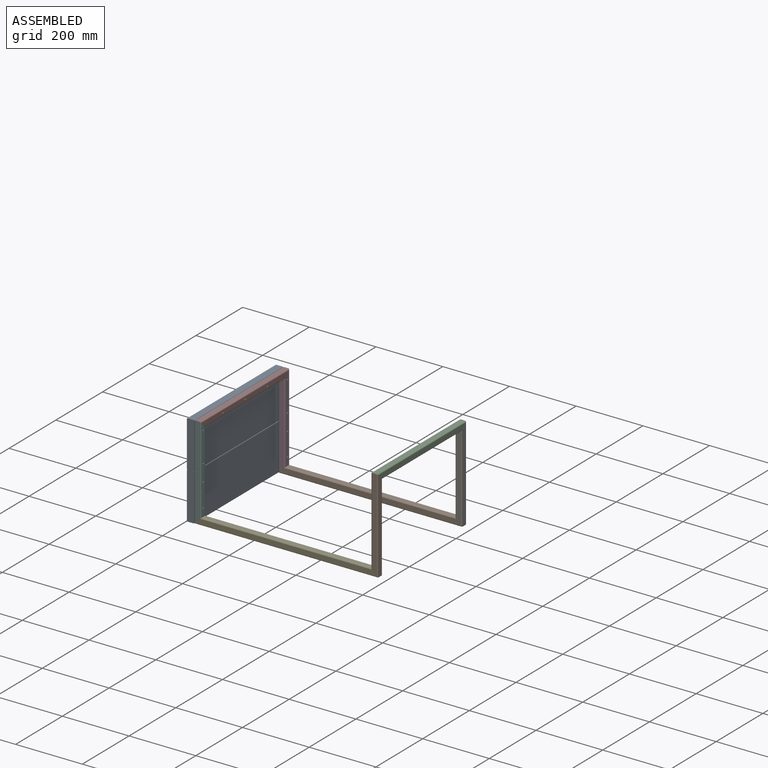
[diagram: assembled view]
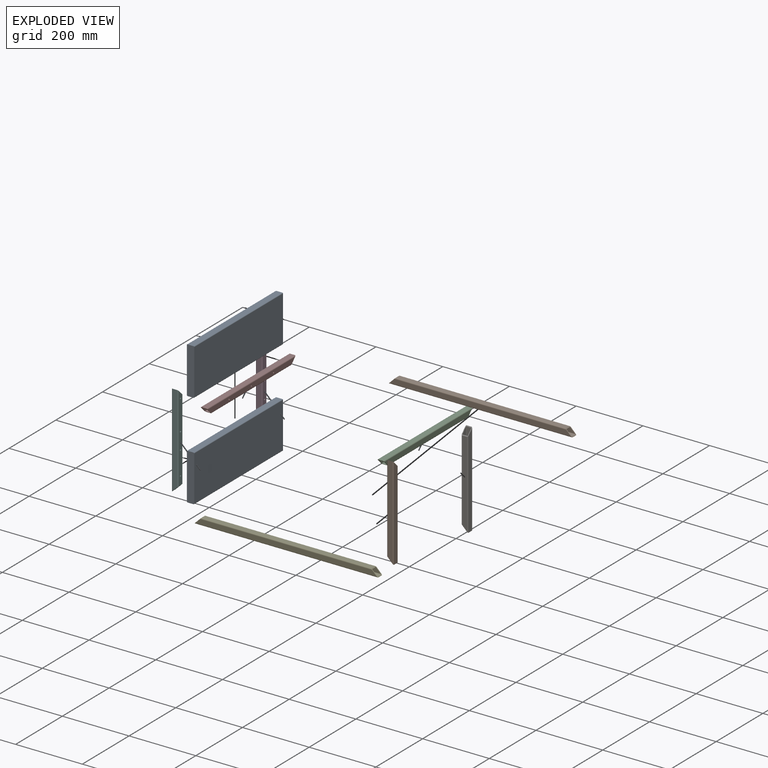
[diagram: exploded view]
GUIDED TOUR — MATED ASSEMBLY (Onshape document 8df5df5993ff2c04b47fe35c, AutoMate assembly 8df5df5993ff2c04b47fe35c_9302a440cc6d248bd5f4f8c5_75856d870aac80b1c467b3a7_default)

This assembly has 10 components, labeled P0..P9 below (a component is one placed occurrence of a part; the same part can appear more than once), held together by 9 mates. A mate is a constraint between two components; its type names the relative motion it leaves free:
  FASTENED — locks the two components together rigidly (no relative motion).
Axis/direction vectors are unit vectors and 'through' points are millimeter coordinates, both in the assembly's world frame.

MATES
  1. FASTENED "Fastened 2": P6 <-> P2, direction (0.000, -0.707, 0.707) through (-16.32, 168.05, -8.79) mm
  2. FASTENED "Fastened 3": P1 <-> P4, direction (-0.707, 0.000, -0.707) through (-26.32, -201.95, -268.79) mm
  3. FASTENED "Fastened 4": P9 <-> P6, direction (0.707, 0.000, 0.707) through (-26.32, 158.05, -268.79) mm
  4. FASTENED "Fastened 1": P1 <-> P2, direction (0.000, 0.707, 0.707) through (-16.32, -191.95, -28.79) mm
  5. FASTENED "Fastened 8": P0 <-> P4, direction (0.000, 0.000, -1.000) through (-567.32, -211.95, -288.79) mm
  6. FASTENED "Fastened 7": P7 <-> P5, direction (0.000, -0.707, -0.707) through (-546.32, -191.95, -28.79) mm
  7. FASTENED "Fastened 6": P5 <-> P4, direction (0.707, 0.000, -0.707) through (-538.32, -201.95, -270.79) mm
  8. FASTENED "Fastened 5": P9 <-> P3, direction (-0.707, 0.000, 0.707) through (-538.32, 158.05, -270.79) mm
  9. FASTENED "Fastened 9": P8 <-> P0, direction (0.000, 0.000, -1.000) through (-567.32, -211.95, -148.79) mm

ASSEMBLY ORDER
  1. P6 — the base component [order verified]
  2. P2 [order verified]
  3. P9 [order verified]
  4. P7 [order verified]
  5. P4 [order verified]
  6. P0 [order verified]
  7. P8 [order verified]
  8. P3 [order verified]
  9. P5 [order verified]
  10. P1 [order verified]
Order-tag legend:
  [order verified] — this step's position reverses a verified removal order: the component was checked to insert without passing through the ones already placed.

Of the 10 components, 8 carry the full construction recipe — the FeatureScript program that regenerates the part's solid from scratch; the rest are supplied as boundary geometry only.
Each toured component is shown spotlighted twice — in the assembled view, then in the exploded view, where a leader line traces a displaced component back to its assembled socket (saturated green if recipe-attached, orange if geometry-only; every other component desaturated gray) — followed by its recipe or geometry summary and the mates that hold it.
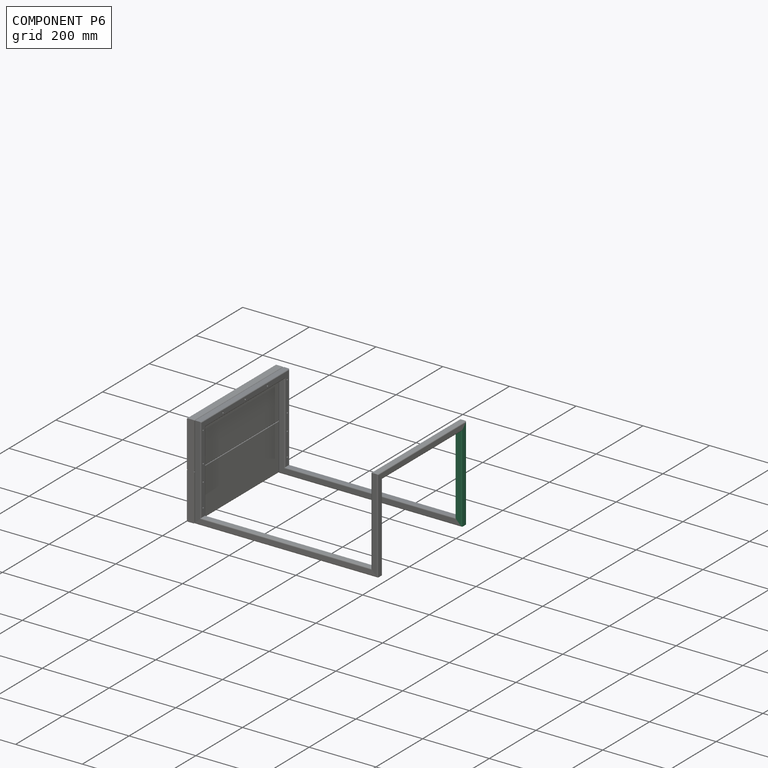
[diagram: component P6 — assembled]
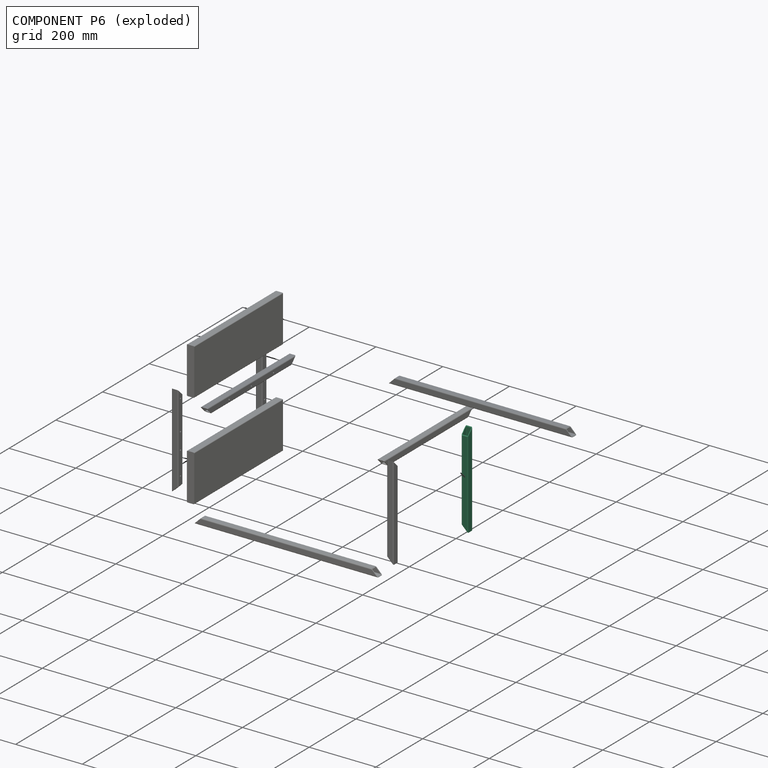
[diagram: component P6 — exploded]
COMPONENT P6 — recipe-attached (CADFS 00524084, mesh-verified: the recipe's output STEP matches this component's geometry to below the mesh-comparison resolution (tessellation chordal tolerance ~0.422 mm)).
Held by: FASTENED mate "Fastened 2" to P2; FASTENED mate "Fastened 4" to P9.
Construction recipe (FeatureScript — the CAD program that rebuilds this solid; sketch coordinates are in the units given by the * unit suffixes, e.g. mm):

FeatureScript 1521;
import(path : "onshape/std/geometry.fs", version : "1521.0");
import(path : "onshape/std/common.fs", version : "1521.0");
const mm = millimeter;
const VERTEX = EntityType.VERTEX;
const EDGE = EntityType.EDGE;
const FACE = EntityType.FACE;
const BODY = EntityType.BODY;
function v(x, y){return vector(x, y);}
function OD(order){return orderDisambiguation(order);}
function OSD(set){return originalSetDisambiguation(set);}
function TD(topology){return topologyDisambiguation(topology);}
function TDD(query){return trueDependencyDisambiguation(query);}
function sQuery(a, b, c) {return sketchEntityQuery(a, b, c);}

annotation { "Feature Type Name" : "Feature", "Feature Type Description" : "" }
export const myFeature = defineFeature(function(context is Context, id is Id, definition is map)
    precondition{}
    {
        {
            assignVariable(context, id + "F0", {"name" : "R", "anyValue" : 3});
        }
        {
            assignVariable(context, id + "F1", {"name" : "W", "anyValue" : 2});
        }
        {
            var Q0;
            Q0=qCreatedBy(makeId("Front.planeOp"),FACE);
            var sketch = newSketch(context, id + "F2", { "sketchPlane" : qUnion([Q0])});
            skLineSegment(sketch, "E0.bottom", {"start": v(-10, 10) * mm, "end": v(10, 10) * mm});
            skLineSegment(sketch, "E0.top", {"start": v(-10, -10) * mm, "end": v(10, -10) * mm});
            skLineSegment(sketch, "E0.left", {"start": v(-10, 10) * mm, "end": v(-10, -10) * mm});
            skLineSegment(sketch, "E0.right", {"start": v(10, 10) * mm, "end": v(10, -10) * mm});
            skSolve(sketch);
        }
        {
            var Q0;
            Q0=qSketchRegion(id+"F2",true);
            extrude(context, id + "F3", {"entities" : qUnion([Q0]), "endBound" : BoundingType.SYMMETRIC, "depth" : 280 * mm, "offsetDistance" : 25 * mm});
        }
        {
            var Q0;
            Q0=makeQuery(id+"F3.opExtrude","SWEPT_EDGE",EDGE,{"disambiguationData":[OSD([sQuery(id+"F2.wireOp",EDGE,"E0.bottom"),sQuery(id+"F2.wireOp",EDGE,"E0.right")])]});
            var Q1;
            Q1=makeQuery(id+"F3.opExtrude","SWEPT_EDGE",EDGE,{"disambiguationData":[OSD([sQuery(id+"F2.wireOp",EDGE,"E0.bottom"),sQuery(id+"F2.wireOp",EDGE,"E0.left")])]});
            var Q2;
            Q2=makeQuery(id+"F3.opExtrude","SWEPT_EDGE",EDGE,{"disambiguationData":[OSD([sQuery(id+"F2.wireOp",EDGE,"E0.top"),sQuery(id+"F2.wireOp",EDGE,"E0.right")])]});
            var Q3;
            Q3=makeQuery(id+"F3.opExtrude","SWEPT_EDGE",EDGE,{"disambiguationData":[OSD([sQuery(id+"F2.wireOp",EDGE,"E0.top"),sQuery(id+"F2.wireOp",EDGE,"E0.left")])]});
            fillet(context, id + "F4", {"entities" : qUnion([Q0, Q1, Q2, Q3]), "radius" : (getVariable(context, 'R')) * mm, "tangentPropagation" : true, "allowEdgeOverflow" : false});
        }
        {
            var Q0;
            Q0=makeQuery(id+"F3.opExtrude","CAP_FACE",FACE,{"disambiguationData":[OSD([sQuery(id+"F2.wireOp",EDGE,"E0.bottom"),sQuery(id+"F2.wireOp",EDGE,"E0.top"),sQuery(id+"F2.wireOp",EDGE,"E0.left"),sQuery(id+"F2.wireOp",EDGE,"E0.right")])],"isStart":false});
            var Q1;
            Q1=makeQuery(id+"F3.opExtrude","CAP_FACE",FACE,{"disambiguationData":[OSD([sQuery(id+"F2.wireOp",EDGE,"E0.bottom"),sQuery(id+"F2.wireOp",EDGE,"E0.top"),sQuery(id+"F2.wireOp",EDGE,"E0.left"),sQuery(id+"F2.wireOp",EDGE,"E0.right")])],"isStart":true});
            shell(context, id + "F5", {"entities" : qUnion([Q0, Q1]), "thickness" : (getVariable(context, 'W')) * mm});
        }
        {
            var Q0;
            Q0=makeQuery(id+"F3.opExtrude","SWEPT_FACE",FACE,{"disambiguationData":[OSD([sQuery(id+"F2.wireOp",EDGE,"E0.left")])]});
            var sketch = newSketch(context, id + "F6", { "sketchPlane" : qUnion([Q0])});
            skLineSegment(sketch, "E1", {"start": v(-140, -10) * mm, "end": v(-120, -10) * mm});
            skLineSegment(sketch, "E2", {"start": v(-120, -10) * mm, "end": v(-140, 10) * mm});
            skLineSegment(sketch, "E3", {"start": v(-140, 10) * mm, "end": v(-140, -10) * mm});
            skSolve(sketch);
        }
        {
            var Q0;
            Q0=qSketchRegion(id+"F6",true);
            extrude(context, id + "F7", {"entities" : qUnion([Q0]), "operationType" : NewBodyOperationType.REMOVE, "endBound" : BoundingType.THROUGH_ALL, "oppositeDirection" : true, "depth" : 25 * mm, "offsetDistance" : 25 * mm});
        }
        {
            var Q0;
            Q0=makeQuery(id+"F3.opExtrude","SWEPT_FACE",FACE,{"disambiguationData":[OSD([sQuery(id+"F2.wireOp",EDGE,"E0.top")])]});
            var sketch = newSketch(context, id + "F8", { "sketchPlane" : qUnion([Q0])});
            skLineSegment(sketch, "E4.0", {"start": v(-10, 120) * mm, "end": v(-10, 140) * mm});
            skLineSegment(sketch, "E5", {"start": v(-10, 120) * mm, "end": v(10, 140) * mm});
            skLineSegment(sketch, "E6", {"start": v(10, 140) * mm, "end": v(-10, 140) * mm});
            skPoint(sketch, "E7.orphan", {"position": v(-10, -123) * mm});
            skPoint(sketch, "E8.0.end.orphan", {"position": v(10, -123) * mm});
            skSolve(sketch);
        }
        {
            var Q0;
            Q0 = qSketchRegion(id + "F8", true);
            extrude(context, id + "F9", {"entities" : qUnion([Q0]), "operationType" : NewBodyOperationType.REMOVE, "endBound" : BoundingType.THROUGH_ALL, "oppositeDirection" : true, "depth" : 25 * mm, "offsetDistance" : 25 * mm});
        }
    });
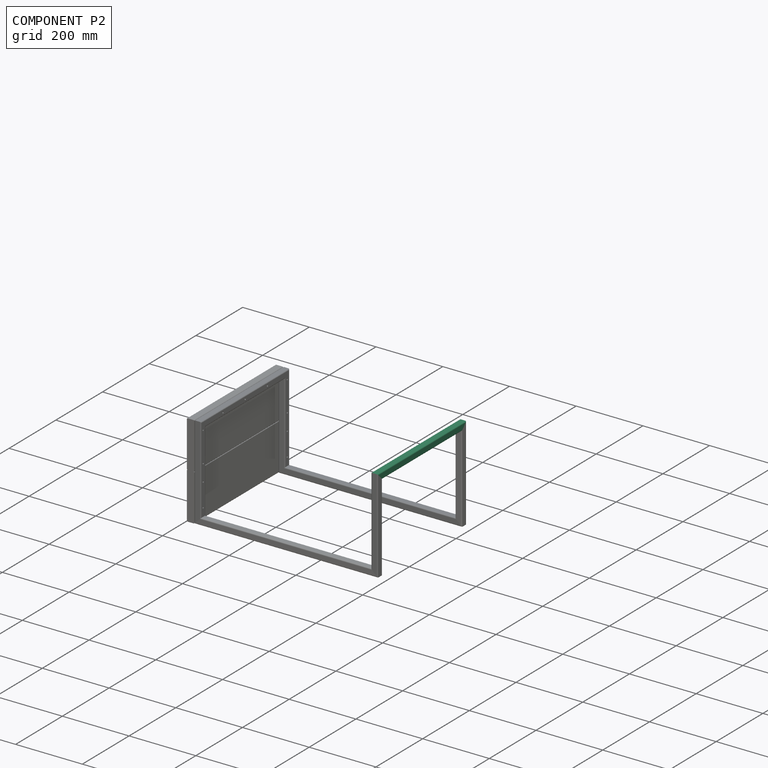
[diagram: component P2 — assembled]
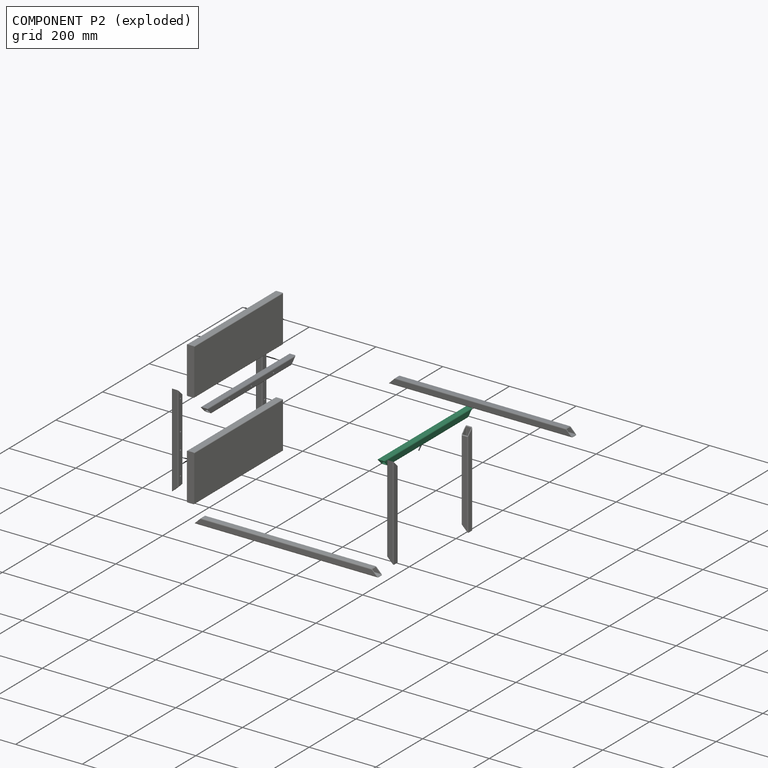
[diagram: component P2 — exploded]
COMPONENT P2 — recipe-attached (CADFS 00524078, mesh-verified: the recipe's output STEP matches this component's geometry to below the mesh-comparison resolution (tessellation chordal tolerance ~0.572 mm)).
Held by: FASTENED mate "Fastened 2" to P6; FASTENED mate "Fastened 1" to P1.
Construction recipe (FeatureScript — the CAD program that rebuilds this solid; sketch coordinates are in the units given by the * unit suffixes, e.g. mm):

FeatureScript 1521;
import(path : "onshape/std/geometry.fs", version : "1521.0");
import(path : "onshape/std/common.fs", version : "1521.0");
const mm = millimeter;
const VERTEX = EntityType.VERTEX;
const EDGE = EntityType.EDGE;
const FACE = EntityType.FACE;
const BODY = EntityType.BODY;
function v(x, y){return vector(x, y);}
function OD(order){return orderDisambiguation(order);}
function OSD(set){return originalSetDisambiguation(set);}
function TD(topology){return topologyDisambiguation(topology);}
function TDD(query){return trueDependencyDisambiguation(query);}
function sQuery(a, b, c) {return sketchEntityQuery(a, b, c);}

annotation { "Feature Type Name" : "Feature", "Feature Type Description" : "" }
export const myFeature = defineFeature(function(context is Context, id is Id, definition is map)
    precondition{}
    {
        {
            assignVariable(context, id + "F0", {"name" : "R", "anyValue" : 3});
        }
        {
            assignVariable(context, id + "F1", {"name" : "W", "anyValue" : 2});
        }
        {
            var Q0;
            Q0=qCreatedBy(makeId("Front.planeOp"),FACE);
            var sketch = newSketch(context, id + "F2", { "sketchPlane" : qUnion([Q0])});
            skLineSegment(sketch, "E0.bottom", {"start": v(-10, 10) * mm, "end": v(10, 10) * mm});
            skLineSegment(sketch, "E0.top", {"start": v(-10, -10) * mm, "end": v(10, -10) * mm});
            skLineSegment(sketch, "E0.left", {"start": v(-10, 10) * mm, "end": v(-10, -10) * mm});
            skLineSegment(sketch, "E0.right", {"start": v(10, 10) * mm, "end": v(10, -10) * mm});
            skSolve(sketch);
        }
        {
            var Q0;
            Q0=qSketchRegion(id+"F2",true);
            extrude(context, id + "F3", {"entities" : qUnion([Q0]), "endBound" : BoundingType.SYMMETRIC, "depth" : 380 * mm, "offsetDistance" : 25 * mm});
        }
        {
            var Q0;
            Q0=makeQuery(id+"F3.opExtrude","SWEPT_EDGE",EDGE,{"disambiguationData":[OSD([sQuery(id+"F2.wireOp",EDGE,"E0.bottom"),sQuery(id+"F2.wireOp",EDGE,"E0.right")])]});
            var Q1;
            Q1=makeQuery(id+"F3.opExtrude","SWEPT_EDGE",EDGE,{"disambiguationData":[OSD([sQuery(id+"F2.wireOp",EDGE,"E0.bottom"),sQuery(id+"F2.wireOp",EDGE,"E0.left")])]});
            var Q2;
            Q2=makeQuery(id+"F3.opExtrude","SWEPT_EDGE",EDGE,{"disambiguationData":[OSD([sQuery(id+"F2.wireOp",EDGE,"E0.top"),sQuery(id+"F2.wireOp",EDGE,"E0.right")])]});
            var Q3;
            Q3=makeQuery(id+"F3.opExtrude","SWEPT_EDGE",EDGE,{"disambiguationData":[OSD([sQuery(id+"F2.wireOp",EDGE,"E0.top"),sQuery(id+"F2.wireOp",EDGE,"E0.left")])]});
            fillet(context, id + "F4", {"entities" : qUnion([Q0, Q1, Q2, Q3]), "radius" : (getVariable(context, 'R')) * mm, "tangentPropagation" : true, "allowEdgeOverflow" : false});
        }
        {
            var Q0;
            Q0=makeQuery(id+"F3.opExtrude","CAP_FACE",FACE,{"disambiguationData":[OSD([sQuery(id+"F2.wireOp",EDGE,"E0.bottom"),sQuery(id+"F2.wireOp",EDGE,"E0.top"),sQuery(id+"F2.wireOp",EDGE,"E0.left"),sQuery(id+"F2.wireOp",EDGE,"E0.right")])],"isStart":false});
            var Q1;
            Q1=makeQuery(id+"F3.opExtrude","CAP_FACE",FACE,{"disambiguationData":[OSD([sQuery(id+"F2.wireOp",EDGE,"E0.bottom"),sQuery(id+"F2.wireOp",EDGE,"E0.top"),sQuery(id+"F2.wireOp",EDGE,"E0.left"),sQuery(id+"F2.wireOp",EDGE,"E0.right")])],"isStart":true});
            shell(context, id + "F5", {"entities" : qUnion([Q0, Q1]), "thickness" : (getVariable(context, 'W')) * mm});
        }
        {
            var Q0;
            Q0=makeQuery(id+"F3.opExtrude","SWEPT_FACE",FACE,{"disambiguationData":[OSD([sQuery(id+"F2.wireOp",EDGE,"E0.left")])]});
            var sketch = newSketch(context, id + "F6", { "sketchPlane" : qUnion([Q0])});
            skLineSegment(sketch, "E1", {"start": v(-190, -10) * mm, "end": v(-170, -10) * mm});
            skLineSegment(sketch, "E2", {"start": v(-170, -10) * mm, "end": v(-190, 10) * mm});
            skLineSegment(sketch, "E3", {"start": v(-190, 10) * mm, "end": v(-190, -10) * mm});
            skSolve(sketch);
        }
        {
            var Q0;
            Q0=qSketchRegion(id+"F6",true);
            extrude(context, id + "F7", {"entities" : qUnion([Q0]), "operationType" : NewBodyOperationType.REMOVE, "endBound" : BoundingType.THROUGH_ALL, "oppositeDirection" : true, "depth" : 25 * mm, "offsetDistance" : 25 * mm});
        }
        {
            var Q0;
            Q0=makeQuery(id+"F3.opExtrude","SWEPT_FACE",FACE,{"disambiguationData":[OSD([sQuery(id+"F2.wireOp",EDGE,"E0.right")])]});
            var sketch = newSketch(context, id + "F8", { "sketchPlane" : qUnion([Q0])});
            skLineSegment(sketch, "E4.0", {"start": v(170, -10) * mm, "end": v(-190, -10) * mm, "construction": true});
            skLineSegment(sketch, "E4.1", {"start": v(-190, 10) * mm, "end": v(190, 10) * mm, "construction": true});
            skLineSegment(sketch, "E5", {"start": v(-170, -10) * mm, "end": v(-190, 10) * mm});
            skLineSegment(sketch, "E6", {"start": v(-190, -10) * mm, "end": v(-170, -10) * mm});
            skLineSegment(sketch, "E7", {"start": v(-190, 10) * mm, "end": v(-190, -10) * mm});
            skSolve(sketch);
        }
        {
            var Q0;
            Q0=qSketchRegion(id+"F8",true);
            extrude(context, id + "F9", {"entities" : qUnion([Q0]), "operationType" : NewBodyOperationType.REMOVE, "endBound" : BoundingType.THROUGH_ALL, "oppositeDirection" : true, "depth" : 25 * mm, "offsetDistance" : 25 * mm});
        }
    });
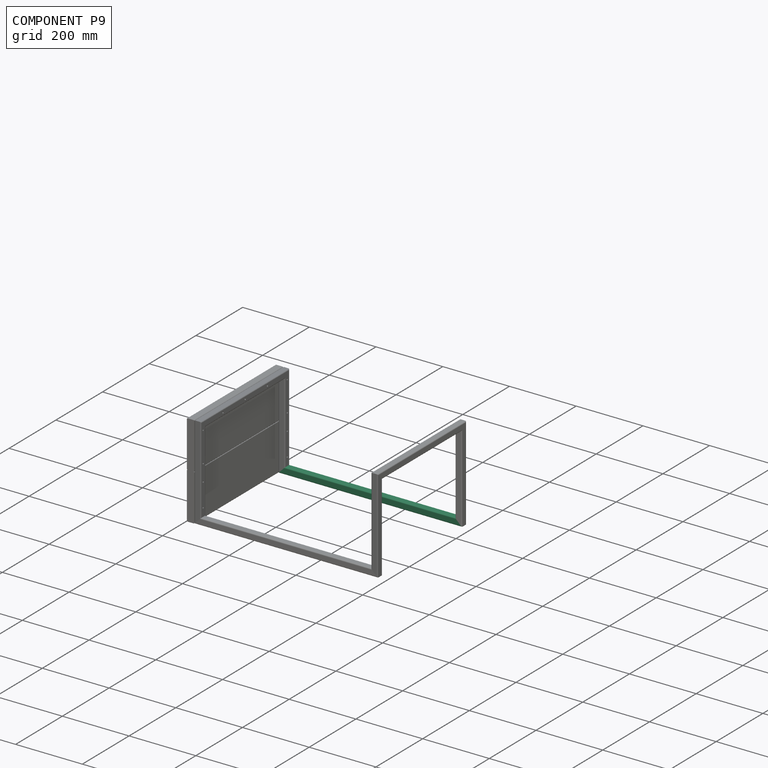
[diagram: component P9 — assembled]
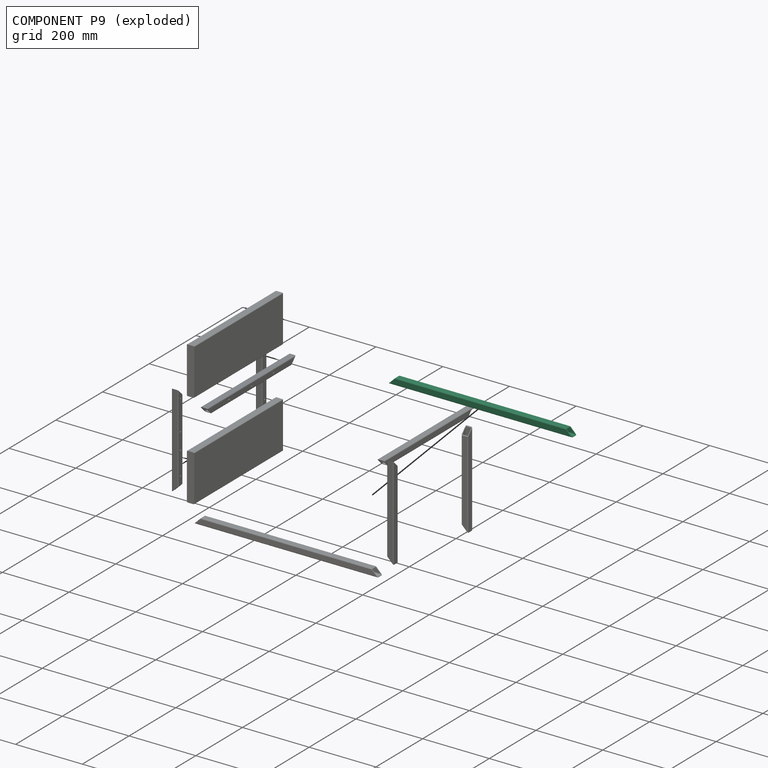
[diagram: component P9 — exploded]
COMPONENT P9 — same part as P4 (CADFS 00524080); its construction recipe is shown at P4.
Held by: FASTENED mate "Fastened 4" to P6; FASTENED mate "Fastened 5" to P3.
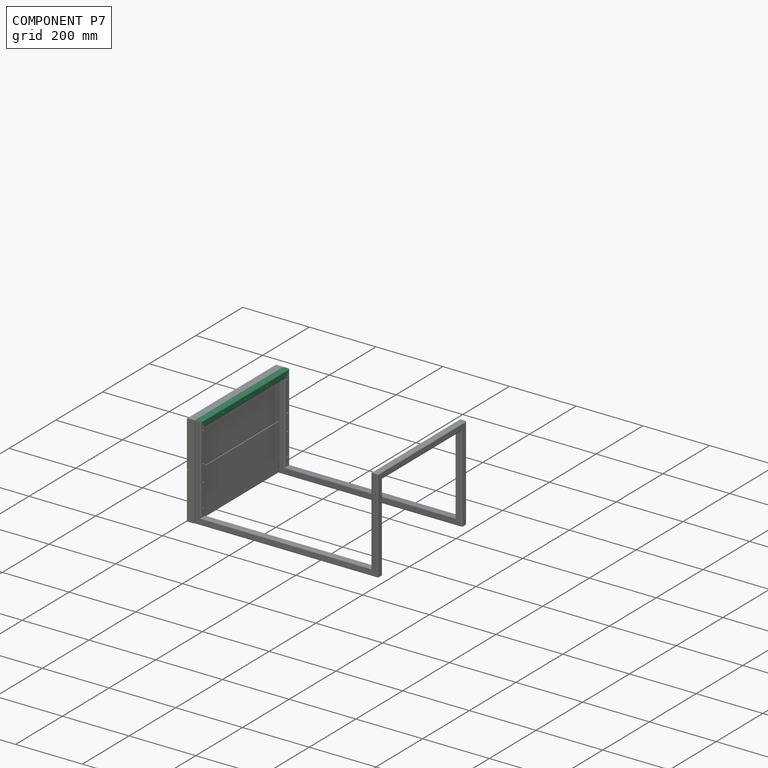
[diagram: component P7 — assembled]
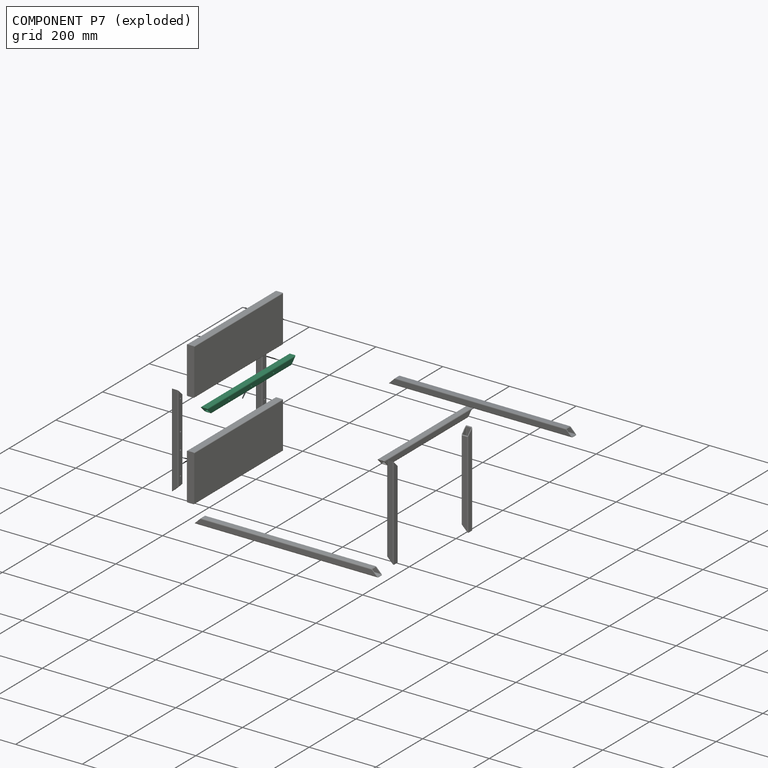
[diagram: component P7 — exploded]
COMPONENT P7 — recipe-attached (CADFS 00524082, mesh-verified: the recipe's output STEP matches this component's geometry to below the mesh-comparison resolution (tessellation chordal tolerance ~0.572 mm)).
Held by: FASTENED mate "Fastened 7" to P5.
Construction recipe (FeatureScript — the CAD program that rebuilds this solid; sketch coordinates are in the units given by the * unit suffixes, e.g. mm):

FeatureScript 1521;
import(path : "onshape/std/geometry.fs", version : "1521.0");
import(path : "onshape/std/common.fs", version : "1521.0");
const mm = millimeter;
const VERTEX = EntityType.VERTEX;
const EDGE = EntityType.EDGE;
const FACE = EntityType.FACE;
const BODY = EntityType.BODY;
function v(x, y){return vector(x, y);}
function OD(order){return orderDisambiguation(order);}
function OSD(set){return originalSetDisambiguation(set);}
function TD(topology){return topologyDisambiguation(topology);}
function TDD(query){return trueDependencyDisambiguation(query);}
function sQuery(a, b, c) {return sketchEntityQuery(a, b, c);}

annotation { "Feature Type Name" : "Feature", "Feature Type Description" : "" }
export const myFeature = defineFeature(function(context is Context, id is Id, definition is map)
    precondition{}
    {
        {
            assignVariable(context, id + "F0", {"name" : "R", "anyValue" : 3});
        }
        {
            assignVariable(context, id + "F1", {"name" : "W", "anyValue" : 2});
        }
        {
            var Q0;
            Q0=qCreatedBy(makeId("Front.planeOp"),FACE);
            var sketch = newSketch(context, id + "F2", { "sketchPlane" : qUnion([Q0])});
            skLineSegment(sketch, "E0.bottom", {"start": v(-10, 10) * mm, "end": v(10, 10) * mm});
            skLineSegment(sketch, "E0.top", {"start": v(-10, -10) * mm, "end": v(10, -10) * mm});
            skLineSegment(sketch, "E0.left", {"start": v(-10, 10) * mm, "end": v(-10, -10) * mm});
            skLineSegment(sketch, "E0.right", {"start": v(10, 10) * mm, "end": v(10, -10) * mm});
            skSolve(sketch);
        }
        {
            var Q0;
            Q0=qSketchRegion(id+"F2",true);
            extrude(context, id + "F3", {"entities" : qUnion([Q0]), "endBound" : BoundingType.SYMMETRIC, "depth" : 380 * mm, "offsetDistance" : 25 * mm});
        }
        {
            var Q0;
            Q0=makeQuery(id+"F3.opExtrude","SWEPT_EDGE",EDGE,{"disambiguationData":[OSD([sQuery(id+"F2.wireOp",EDGE,"E0.bottom"),sQuery(id+"F2.wireOp",EDGE,"E0.right")])]});
            var Q1;
            Q1=makeQuery(id+"F3.opExtrude","SWEPT_EDGE",EDGE,{"disambiguationData":[OSD([sQuery(id+"F2.wireOp",EDGE,"E0.bottom"),sQuery(id+"F2.wireOp",EDGE,"E0.left")])]});
            var Q2;
            Q2=makeQuery(id+"F3.opExtrude","SWEPT_EDGE",EDGE,{"disambiguationData":[OSD([sQuery(id+"F2.wireOp",EDGE,"E0.top"),sQuery(id+"F2.wireOp",EDGE,"E0.right")])]});
            var Q3;
            Q3=makeQuery(id+"F3.opExtrude","SWEPT_EDGE",EDGE,{"disambiguationData":[OSD([sQuery(id+"F2.wireOp",EDGE,"E0.top"),sQuery(id+"F2.wireOp",EDGE,"E0.left")])]});
            fillet(context, id + "F4", {"entities" : qUnion([Q0, Q1, Q2, Q3]), "radius" : (getVariable(context, 'R')) * mm, "tangentPropagation" : true, "allowEdgeOverflow" : false});
        }
        {
            var Q0;
            Q0=makeQuery(id+"F3.opExtrude","CAP_FACE",FACE,{"disambiguationData":[OSD([sQuery(id+"F2.wireOp",EDGE,"E0.bottom"),sQuery(id+"F2.wireOp",EDGE,"E0.top"),sQuery(id+"F2.wireOp",EDGE,"E0.left"),sQuery(id+"F2.wireOp",EDGE,"E0.right")])],"isStart":false});
            var Q1;
            Q1=makeQuery(id+"F3.opExtrude","CAP_FACE",FACE,{"disambiguationData":[OSD([sQuery(id+"F2.wireOp",EDGE,"E0.bottom"),sQuery(id+"F2.wireOp",EDGE,"E0.top"),sQuery(id+"F2.wireOp",EDGE,"E0.left"),sQuery(id+"F2.wireOp",EDGE,"E0.right")])],"isStart":true});
            shell(context, id + "F5", {"entities" : qUnion([Q0, Q1]), "thickness" : (getVariable(context, 'W')) * mm});
        }
        {
            var Q0;
            Q0=makeQuery(id+"F3.opExtrude","SWEPT_FACE",FACE,{"disambiguationData":[OSD([sQuery(id+"F2.wireOp",EDGE,"E0.left")])]});
            var sketch = newSketch(context, id + "F6", { "sketchPlane" : qUnion([Q0])});
            skLineSegment(sketch, "E1", {"start": v(-190, -10) * mm, "end": v(-170, -10) * mm});
            skLineSegment(sketch, "E2", {"start": v(-170, -10) * mm, "end": v(-190, 10) * mm});
            skLineSegment(sketch, "E3", {"start": v(-190, 10) * mm, "end": v(-190, -10) * mm});
            skSolve(sketch);
        }
        {
            var Q0;
            Q0=qSketchRegion(id+"F6",true);
            extrude(context, id + "F7", {"entities" : qUnion([Q0]), "operationType" : NewBodyOperationType.REMOVE, "endBound" : BoundingType.THROUGH_ALL, "oppositeDirection" : true, "depth" : 25 * mm, "offsetDistance" : 25 * mm});
        }
        {
            var Q0;
            Q0=makeQuery(id+"F3.opExtrude","SWEPT_FACE",FACE,{"disambiguationData":[OSD([sQuery(id+"F2.wireOp",EDGE,"E0.right")])]});
            var sketch = newSketch(context, id + "F8", { "sketchPlane" : qUnion([Q0])});
            skLineSegment(sketch, "E4.0", {"start": v(170, -10) * mm, "end": v(-190, -10) * mm, "construction": true});
            skLineSegment(sketch, "E4.1", {"start": v(-190, 10) * mm, "end": v(190, 10) * mm, "construction": true});
            skLineSegment(sketch, "E5", {"start": v(-170, -10) * mm, "end": v(-190, 10) * mm});
            skLineSegment(sketch, "E6", {"start": v(-190, -10) * mm, "end": v(-170, -10) * mm});
            skLineSegment(sketch, "E7", {"start": v(-190, 10) * mm, "end": v(-190, -10) * mm});
            skSolve(sketch);
        }
        {
            var Q0;
            Q0=qSketchRegion(id+"F8",true);
            extrude(context, id + "F9", {"entities" : qUnion([Q0]), "operationType" : NewBodyOperationType.REMOVE, "endBound" : BoundingType.THROUGH_ALL, "oppositeDirection" : true, "depth" : 25 * mm, "offsetDistance" : 25 * mm});
        }
        {
            var Q0;
            Q0=makeQuery(id+"F3.opExtrude","SWEPT_FACE",FACE,{"disambiguationData":[OSD([sQuery(id+"F2.wireOp",EDGE,"E0.right")])]});
            var sketch = newSketch(context, id + "F10", { "sketchPlane" : qUnion([Q0])});
            skPoint(sketch, "E8", {"position": v(95, 0) * mm});
            skPoint(sketch, "E9", {"position": v(0, 0) * mm});
            skPoint(sketch, "E10", {"position": v(-95, 0) * mm});
            skSolve(sketch);
        }
        {
            var Q0;
            Q0=sQuery(id+"F10.wireOp",VERTEX,"E8");
            var Q1;
            Q1=sQuery(id+"F10.wireOp",VERTEX,"E9");
            var Q2;
            Q2=sQuery(id+"F10.wireOp",VERTEX,"E10");
            var Q3;
            Q3=makeQuery(id+"F3.opExtrude","SWEPT_BODY",BODY,{"disambiguationData":[OSD([sQuery(id+"F2.wireOp",EDGE,"E0.bottom"),sQuery(id+"F2.wireOp",EDGE,"E0.top"),sQuery(id+"F2.wireOp",EDGE,"E0.left"),sQuery(id+"F2.wireOp",EDGE,"E0.right")])]});
            hole(context, id + "F11", {"style" : HoleStyle.C_SINK, "endStyle" : HoleEndStyle.THROUGH, "holeDiameter" : 3 * mm, "cSinkDiameter" : 5 * mm, "cSinkAngle" : 90 * degree, "isTappedThrough" : true, "tappedDepth" : 12 * mm, "tapClearance" : 3, "locations" : qUnion([Q0, Q1, Q2]), "scope" : qUnion([Q3])});
        }
    });
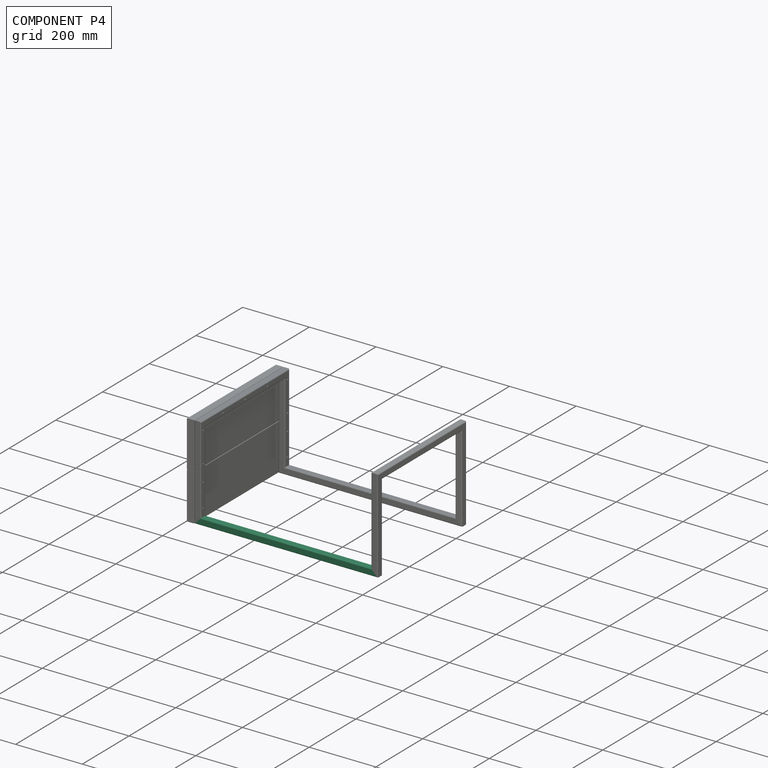
[diagram: component P4 — assembled]
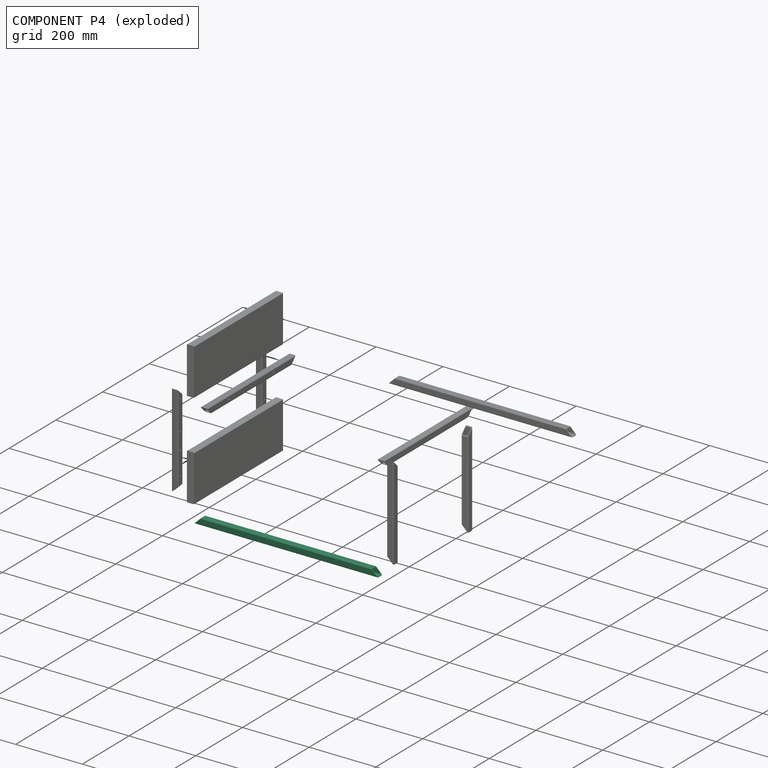
[diagram: component P4 — exploded]
COMPONENT P4 — recipe-attached (CADFS 00524080, mesh-verified: the recipe's output STEP matches this component's geometry to below the mesh-comparison resolution (tessellation chordal tolerance ~0.826 mm)).
Held by: FASTENED mate "Fastened 3" to P1; FASTENED mate "Fastened 8" to P0; FASTENED mate "Fastened 6" to P5.
Construction recipe (FeatureScript — the CAD program that rebuilds this solid; sketch coordinates are in the units given by the * unit suffixes, e.g. mm):

FeatureScript 1521;
import(path : "onshape/std/geometry.fs", version : "1521.0");
import(path : "onshape/std/common.fs", version : "1521.0");
const mm = millimeter;
const VERTEX = EntityType.VERTEX;
const EDGE = EntityType.EDGE;
const FACE = EntityType.FACE;
const BODY = EntityType.BODY;
function v(x, y){return vector(x, y);}
function OD(order){return orderDisambiguation(order);}
function OSD(set){return originalSetDisambiguation(set);}
function TD(topology){return topologyDisambiguation(topology);}
function TDD(query){return trueDependencyDisambiguation(query);}
function sQuery(a, b, c) {return sketchEntityQuery(a, b, c);}

annotation { "Feature Type Name" : "Feature", "Feature Type Description" : "" }
export const myFeature = defineFeature(function(context is Context, id is Id, definition is map)
    precondition{}
    {
        {
            assignVariable(context, id + "F0", {"name" : "R", "anyValue" : 3});
        }
        {
            assignVariable(context, id + "F1", {"name" : "W", "anyValue" : 2});
        }
        {
            var Q0;
            Q0=qCreatedBy(makeId("Front.planeOp"),FACE);
            var sketch = newSketch(context, id + "F2", { "sketchPlane" : qUnion([Q0])});
            skLineSegment(sketch, "E0.bottom", {"start": v(-10, 10) * mm, "end": v(10, 10) * mm});
            skLineSegment(sketch, "E0.top", {"start": v(-10, -10) * mm, "end": v(10, -10) * mm});
            skLineSegment(sketch, "E0.left", {"start": v(-10, 10) * mm, "end": v(-10, -10) * mm});
            skLineSegment(sketch, "E0.right", {"start": v(10, 10) * mm, "end": v(10, -10) * mm});
            skSolve(sketch);
        }
        {
            var Q0;
            Q0=qSketchRegion(id+"F2",true);
            extrude(context, id + "F3", {"entities" : qUnion([Q0]), "endBound" : BoundingType.SYMMETRIC, "depth" : 550 * mm, "offsetDistance" : 25 * mm});
        }
        {
            var Q0;
            Q0=makeQuery(id+"F3.opExtrude","SWEPT_EDGE",EDGE,{"disambiguationData":[OSD([sQuery(id+"F2.wireOp",EDGE,"E0.bottom"),sQuery(id+"F2.wireOp",EDGE,"E0.right")])]});
            var Q1;
            Q1=makeQuery(id+"F3.opExtrude","SWEPT_EDGE",EDGE,{"disambiguationData":[OSD([sQuery(id+"F2.wireOp",EDGE,"E0.bottom"),sQuery(id+"F2.wireOp",EDGE,"E0.left")])]});
            var Q2;
            Q2=makeQuery(id+"F3.opExtrude","SWEPT_EDGE",EDGE,{"disambiguationData":[OSD([sQuery(id+"F2.wireOp",EDGE,"E0.top"),sQuery(id+"F2.wireOp",EDGE,"E0.right")])]});
            var Q3;
            Q3=makeQuery(id+"F3.opExtrude","SWEPT_EDGE",EDGE,{"disambiguationData":[OSD([sQuery(id+"F2.wireOp",EDGE,"E0.top"),sQuery(id+"F2.wireOp",EDGE,"E0.left")])]});
            fillet(context, id + "F4", {"entities" : qUnion([Q0, Q1, Q2, Q3]), "radius" : (getVariable(context, 'R')) * mm, "tangentPropagation" : true, "allowEdgeOverflow" : false});
        }
        {
            var Q0;
            Q0=makeQuery(id+"F3.opExtrude","CAP_FACE",FACE,{"disambiguationData":[OSD([sQuery(id+"F2.wireOp",EDGE,"E0.bottom"),sQuery(id+"F2.wireOp",EDGE,"E0.top"),sQuery(id+"F2.wireOp",EDGE,"E0.left"),sQuery(id+"F2.wireOp",EDGE,"E0.right")])],"isStart":false});
            var Q1;
            Q1=makeQuery(id+"F3.opExtrude","CAP_FACE",FACE,{"disambiguationData":[OSD([sQuery(id+"F2.wireOp",EDGE,"E0.bottom"),sQuery(id+"F2.wireOp",EDGE,"E0.top"),sQuery(id+"F2.wireOp",EDGE,"E0.left"),sQuery(id+"F2.wireOp",EDGE,"E0.right")])],"isStart":true});
            shell(context, id + "F5", {"entities" : qUnion([Q0, Q1]), "thickness" : (getVariable(context, 'W')) * mm});
        }
        {
            var Q0;
            Q0=makeQuery(id+"F3.opExtrude","SWEPT_FACE",FACE,{"disambiguationData":[OSD([sQuery(id+"F2.wireOp",EDGE,"E0.left")])]});
            var sketch = newSketch(context, id + "F6", { "sketchPlane" : qUnion([Q0])});
            skLineSegment(sketch, "E1", {"start": v(-275, -10) * mm, "end": v(-255, -10) * mm});
            skLineSegment(sketch, "E2", {"start": v(-255, -10) * mm, "end": v(-275, 10) * mm});
            skLineSegment(sketch, "E3", {"start": v(-275, 10) * mm, "end": v(-275, -10) * mm});
            skSolve(sketch);
        }
        {
            var Q0;
            Q0=qSketchRegion(id+"F6",true);
            extrude(context, id + "F7", {"entities" : qUnion([Q0]), "operationType" : NewBodyOperationType.REMOVE, "endBound" : BoundingType.THROUGH_ALL, "oppositeDirection" : true, "depth" : 25 * mm, "offsetDistance" : 25 * mm});
        }
        {
            var Q0;
            Q0=makeQuery(id+"F3.opExtrude","SWEPT_FACE",FACE,{"disambiguationData":[OSD([sQuery(id+"F2.wireOp",EDGE,"E0.right")])]});
            var sketch = newSketch(context, id + "F8", { "sketchPlane" : qUnion([Q0])});
            skLineSegment(sketch, "E4.0", {"start": v(255, -10) * mm, "end": v(-275, -10) * mm, "construction": true});
            skLineSegment(sketch, "E4.1", {"start": v(-275, 10) * mm, "end": v(275, 10) * mm, "construction": true});
            skLineSegment(sketch, "E5", {"start": v(-255, -10) * mm, "end": v(-275, 10) * mm});
            skLineSegment(sketch, "E6", {"start": v(-275, -10) * mm, "end": v(-255, -10) * mm});
            skLineSegment(sketch, "E7", {"start": v(-275, 10) * mm, "end": v(-275, -10) * mm});
            skSolve(sketch);
        }
        {
            var Q0;
            Q0=qSketchRegion(id+"F8",true);
            extrude(context, id + "F9", {"entities" : qUnion([Q0]), "operationType" : NewBodyOperationType.REMOVE, "endBound" : BoundingType.THROUGH_ALL, "oppositeDirection" : true, "depth" : 25 * mm, "offsetDistance" : 25 * mm});
        }
    });
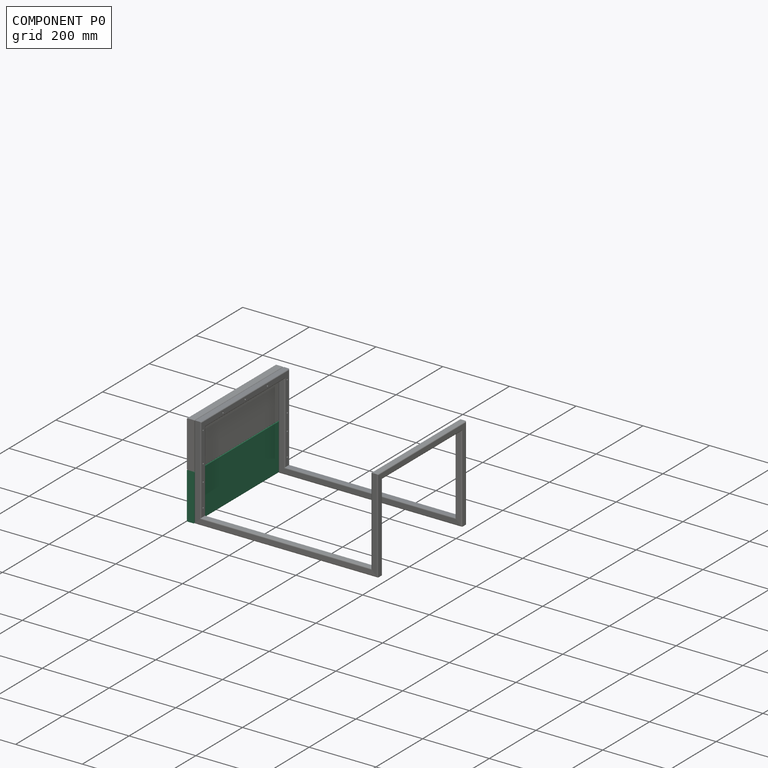
[diagram: component P0 — assembled]
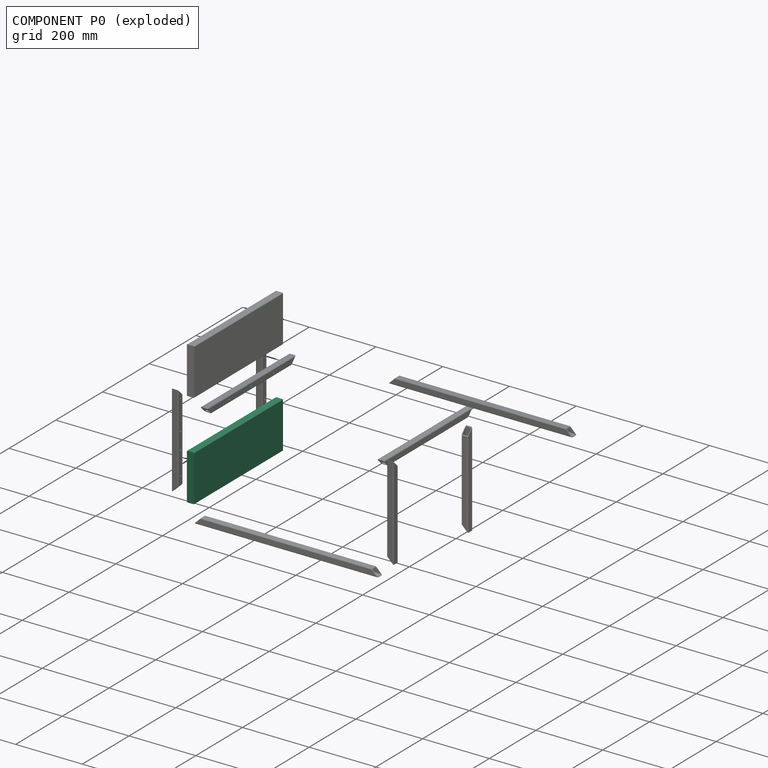
[diagram: component P0 — exploded]
COMPONENT P0 — recipe-attached (CADFS 00524094, mesh-verified: the recipe's output STEP matches this component's geometry to below the mesh-comparison resolution (tessellation chordal tolerance ~0.608 mm)).
Held by: FASTENED mate "Fastened 8" to P4; FASTENED mate "Fastened 9" to P8.
Construction recipe (FeatureScript — the CAD program that rebuilds this solid; sketch coordinates are in the units given by the * unit suffixes, e.g. mm):

FeatureScript 1521;
import(path : "onshape/std/geometry.fs", version : "1521.0");
import(path : "onshape/std/common.fs", version : "1521.0");
const mm = millimeter;
const VERTEX = EntityType.VERTEX;
const EDGE = EntityType.EDGE;
const FACE = EntityType.FACE;
const BODY = EntityType.BODY;
function v(x, y){return vector(x, y);}
function OD(order){return orderDisambiguation(order);}
function OSD(set){return originalSetDisambiguation(set);}
function TD(topology){return topologyDisambiguation(topology);}
function TDD(query){return trueDependencyDisambiguation(query);}
function sQuery(a, b, c) {return sketchEntityQuery(a, b, c);}

annotation { "Feature Type Name" : "Feature", "Feature Type Description" : "" }
export const myFeature = defineFeature(function(context is Context, id is Id, definition is map)
    precondition{}
    {
        {
            var Q0;
            Q0=qCreatedBy(makeId("Front.planeOp"),FACE);
            var sketch = newSketch(context, id + "F0", { "sketchPlane" : qUnion([Q0])});
            skLineSegment(sketch, "E0.bottom", {"start": v(-70, 11) * mm, "end": v(70, 11) * mm});
            skLineSegment(sketch, "E0.top", {"start": v(-70, -11) * mm, "end": v(70, -11) * mm});
            skLineSegment(sketch, "E0.left", {"start": v(-70, 11) * mm, "end": v(-70, -11) * mm});
            skLineSegment(sketch, "E0.right", {"start": v(70, 11) * mm, "end": v(70, -11) * mm});
            skSolve(sketch);
        }
        {
            var Q0;
            Q0=qSketchRegion(id+"F0",true);
            extrude(context, id + "F1", {"entities" : qUnion([Q0]), "endBound" : BoundingType.SYMMETRIC, "depth" : 380 * mm, "offsetDistance" : 25 * mm});
        }
        {
            var Q0;
            Q0=makeQuery(id+"F1.opExtrude","SWEPT_EDGE",EDGE,{"disambiguationData":[OSD([sQuery(id+"F0.wireOp",EDGE,"E0.bottom"),sQuery(id+"F0.wireOp",EDGE,"E0.right")])]});
            var Q1;
            Q1=makeQuery(id+"F1.opExtrude","SWEPT_EDGE",EDGE,{"disambiguationData":[OSD([sQuery(id+"F0.wireOp",EDGE,"E0.top"),sQuery(id+"F0.wireOp",EDGE,"E0.right")])]});
            var Q2;
            Q2=makeQuery(id+"F1.opExtrude","SWEPT_EDGE",EDGE,{"disambiguationData":[OSD([sQuery(id+"F0.wireOp",EDGE,"E0.top"),sQuery(id+"F0.wireOp",EDGE,"E0.left")])]});
            var Q3;
            Q3=makeQuery(id+"F1.opExtrude","SWEPT_EDGE",EDGE,{"disambiguationData":[OSD([sQuery(id+"F0.wireOp",EDGE,"E0.bottom"),sQuery(id+"F0.wireOp",EDGE,"E0.left")])]});
            fillet(context, id + "F2", {"entities" : qUnion([Q0, Q1, Q2, Q3]), "radius" : 2 * mm, "tangentPropagation" : true, "allowEdgeOverflow" : false});
        }
    });
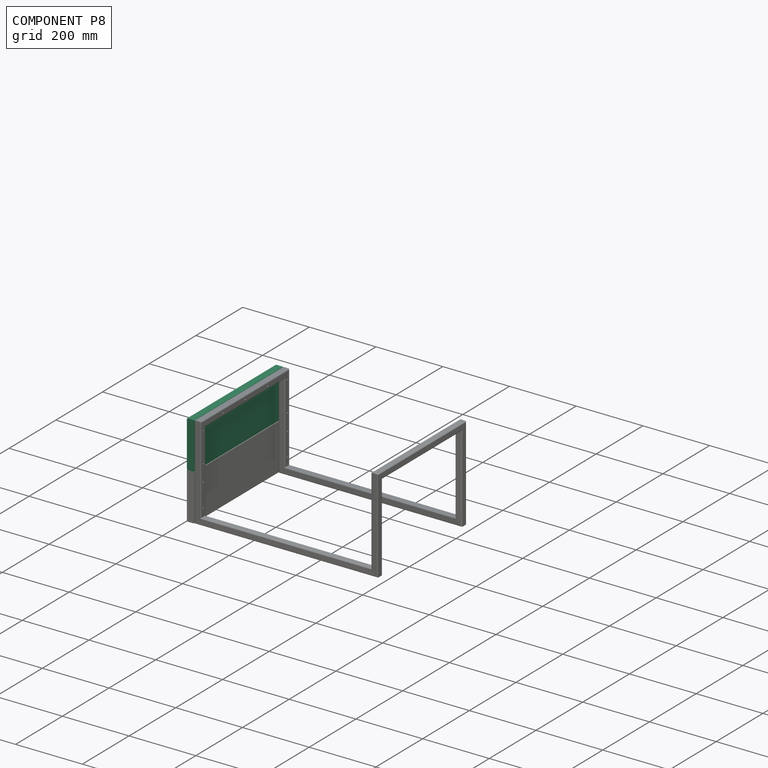
[diagram: component P8 — assembled]
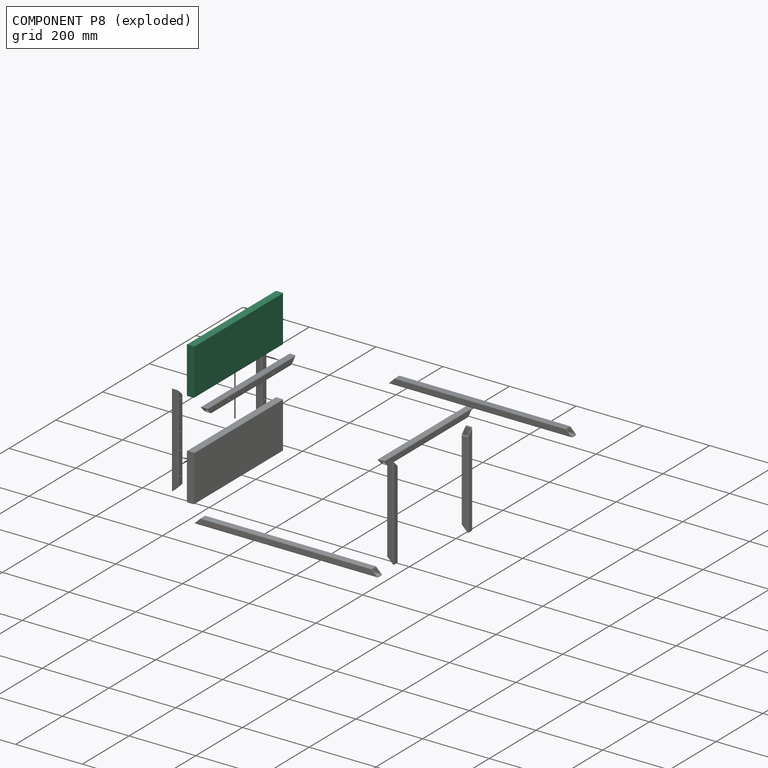
[diagram: component P8 — exploded]
COMPONENT P8 — same part as P0 (CADFS 00524094); its construction recipe is shown at P0.
Held by: FASTENED mate "Fastened 9" to P0.
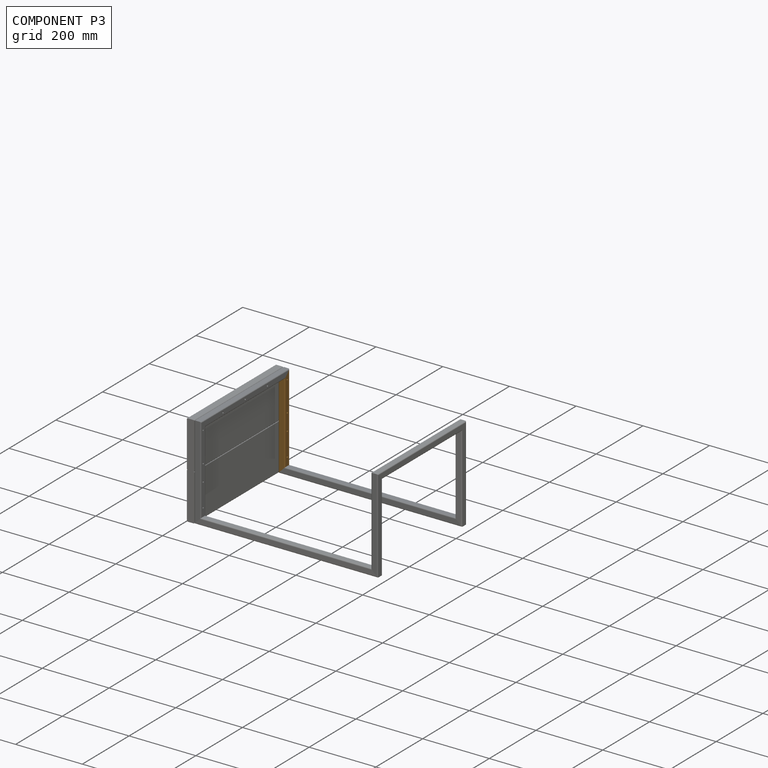
[diagram: component P3 — assembled]
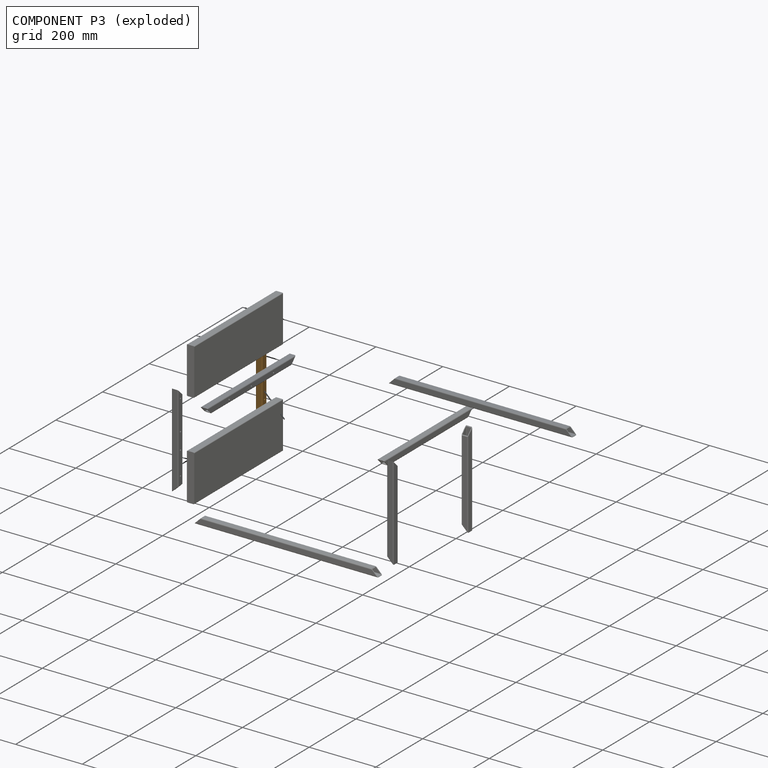
[diagram: component P3 — exploded]
COMPONENT P3 — geometry summary (no construction recipe available for this part):
  bounding box: 280.0 x 20.0 x 20.0 mm
  B-rep topology: 1 solid, 30 faces, 168 edges
  volume: 35518 mm^3 (32% of its bounding box)
Held by: FASTENED mate "Fastened 5" to P9.
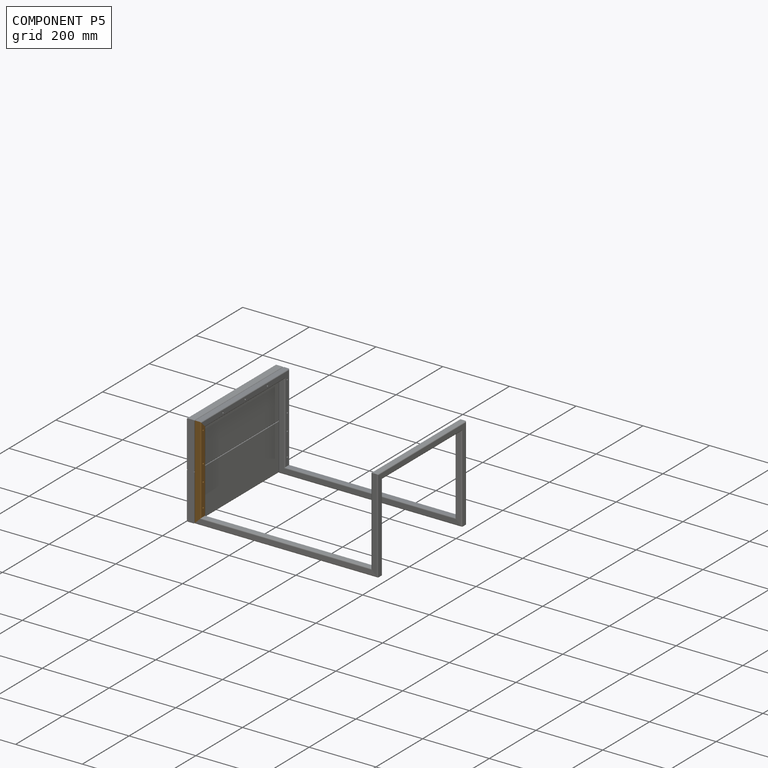
[diagram: component P5 — assembled]
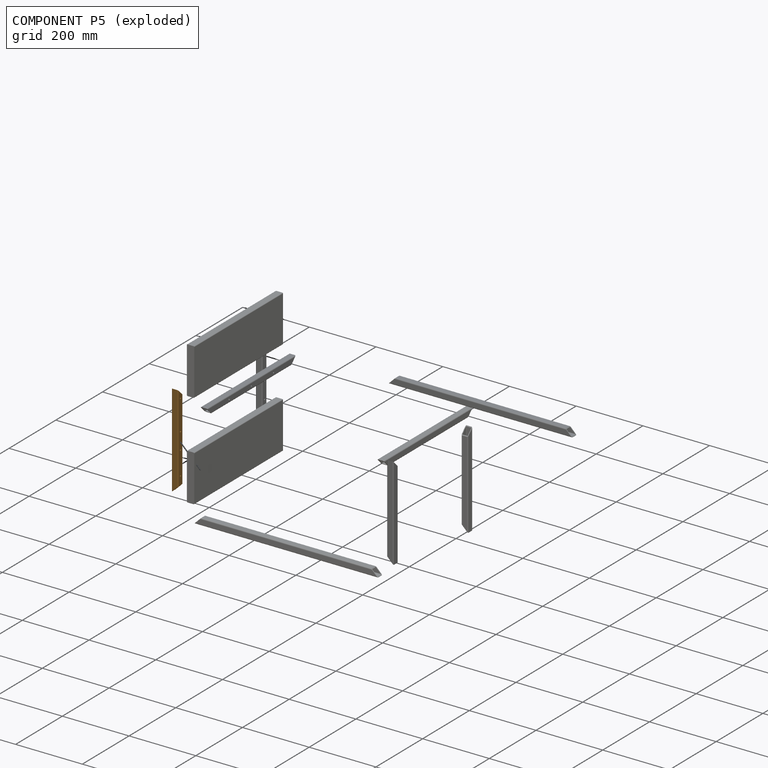
[diagram: component P5 — exploded]
COMPONENT P5 — geometry summary (no construction recipe available for this part):
  bounding box: 280.0 x 20.0 x 20.0 mm
  B-rep topology: 1 solid, 30 faces, 168 edges
  volume: 35518 mm^3 (32% of its bounding box)
Held by: FASTENED mate "Fastened 7" to P7; FASTENED mate "Fastened 6" to P4.
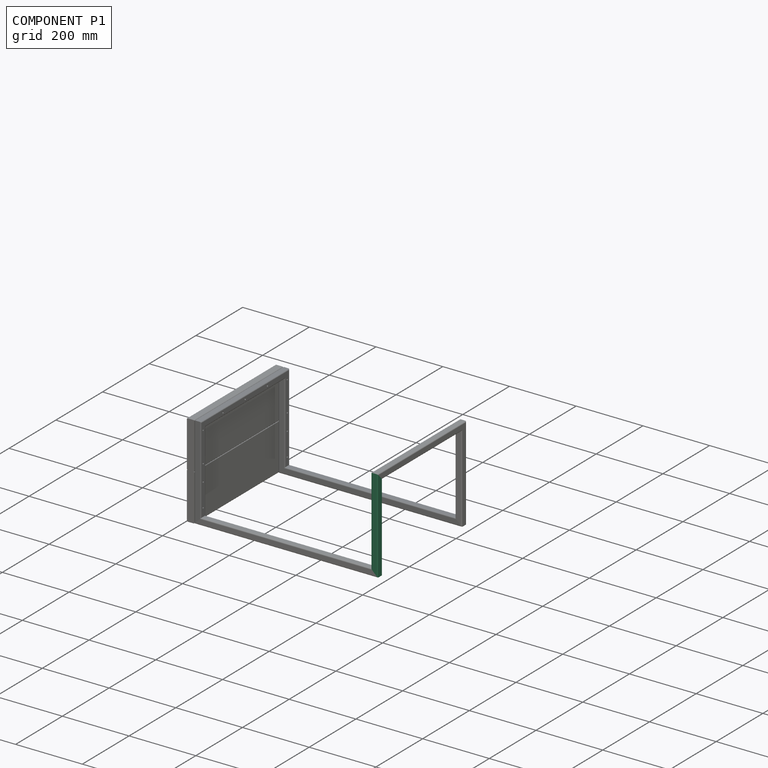
[diagram: component P1 — assembled]
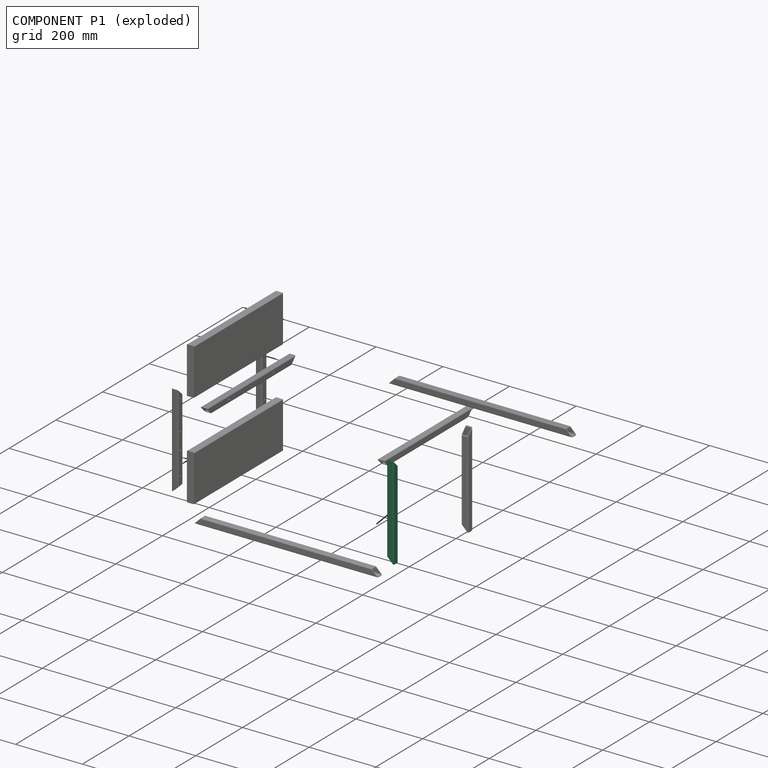
[diagram: component P1 — exploded]
COMPONENT P1 — recipe-attached (CADFS 00524084, mesh-verified: the recipe's output STEP matches this component's geometry to below the mesh-comparison resolution (tessellation chordal tolerance ~0.422 mm)).
Held by: FASTENED mate "Fastened 3" to P4; FASTENED mate "Fastened 1" to P2.
Construction recipe (FeatureScript — the CAD program that rebuilds this solid; sketch coordinates are in the units given by the * unit suffixes, e.g. mm):

FeatureScript 1521;
import(path : "onshape/std/geometry.fs", version : "1521.0");
import(path : "onshape/std/common.fs", version : "1521.0");
const mm = millimeter;
const VERTEX = EntityType.VERTEX;
const EDGE = EntityType.EDGE;
const FACE = EntityType.FACE;
const BODY = EntityType.BODY;
function v(x, y){return vector(x, y);}
function OD(order){return orderDisambiguation(order);}
function OSD(set){return originalSetDisambiguation(set);}
function TD(topology){return topologyDisambiguation(topology);}
function TDD(query){return trueDependencyDisambiguation(query);}
function sQuery(a, b, c) {return sketchEntityQuery(a, b, c);}

annotation { "Feature Type Name" : "Feature", "Feature Type Description" : "" }
export const myFeature = defineFeature(function(context is Context, id is Id, definition is map)
    precondition{}
    {
        {
            assignVariable(context, id + "F0", {"name" : "R", "anyValue" : 3});
        }
        {
            assignVariable(context, id + "F1", {"name" : "W", "anyValue" : 2});
        }
        {
            var Q0;
            Q0=qCreatedBy(makeId("Front.planeOp"),FACE);
            var sketch = newSketch(context, id + "F2", { "sketchPlane" : qUnion([Q0])});
            skLineSegment(sketch, "E0.bottom", {"start": v(-10, 10) * mm, "end": v(10, 10) * mm});
            skLineSegment(sketch, "E0.top", {"start": v(-10, -10) * mm, "end": v(10, -10) * mm});
            skLineSegment(sketch, "E0.left", {"start": v(-10, 10) * mm, "end": v(-10, -10) * mm});
            skLineSegment(sketch, "E0.right", {"start": v(10, 10) * mm, "end": v(10, -10) * mm});
            skSolve(sketch);
        }
        {
            var Q0;
            Q0=qSketchRegion(id+"F2",true);
            extrude(context, id + "F3", {"entities" : qUnion([Q0]), "endBound" : BoundingType.SYMMETRIC, "depth" : 280 * mm, "offsetDistance" : 25 * mm});
        }
        {
            var Q0;
            Q0=makeQuery(id+"F3.opExtrude","SWEPT_EDGE",EDGE,{"disambiguationData":[OSD([sQuery(id+"F2.wireOp",EDGE,"E0.bottom"),sQuery(id+"F2.wireOp",EDGE,"E0.right")])]});
            var Q1;
            Q1=makeQuery(id+"F3.opExtrude","SWEPT_EDGE",EDGE,{"disambiguationData":[OSD([sQuery(id+"F2.wireOp",EDGE,"E0.bottom"),sQuery(id+"F2.wireOp",EDGE,"E0.left")])]});
            var Q2;
            Q2=makeQuery(id+"F3.opExtrude","SWEPT_EDGE",EDGE,{"disambiguationData":[OSD([sQuery(id+"F2.wireOp",EDGE,"E0.top"),sQuery(id+"F2.wireOp",EDGE,"E0.right")])]});
            var Q3;
            Q3=makeQuery(id+"F3.opExtrude","SWEPT_EDGE",EDGE,{"disambiguationData":[OSD([sQuery(id+"F2.wireOp",EDGE,"E0.top"),sQuery(id+"F2.wireOp",EDGE,"E0.left")])]});
            fillet(context, id + "F4", {"entities" : qUnion([Q0, Q1, Q2, Q3]), "radius" : (getVariable(context, 'R')) * mm, "tangentPropagation" : true, "allowEdgeOverflow" : false});
        }
        {
            var Q0;
            Q0=makeQuery(id+"F3.opExtrude","CAP_FACE",FACE,{"disambiguationData":[OSD([sQuery(id+"F2.wireOp",EDGE,"E0.bottom"),sQuery(id+"F2.wireOp",EDGE,"E0.top"),sQuery(id+"F2.wireOp",EDGE,"E0.left"),sQuery(id+"F2.wireOp",EDGE,"E0.right")])],"isStart":false});
            var Q1;
            Q1=makeQuery(id+"F3.opExtrude","CAP_FACE",FACE,{"disambiguationData":[OSD([sQuery(id+"F2.wireOp",EDGE,"E0.bottom"),sQuery(id+"F2.wireOp",EDGE,"E0.top"),sQuery(id+"F2.wireOp",EDGE,"E0.left"),sQuery(id+"F2.wireOp",EDGE,"E0.right")])],"isStart":true});
            shell(context, id + "F5", {"entities" : qUnion([Q0, Q1]), "thickness" : (getVariable(context, 'W')) * mm});
        }
        {
            var Q0;
            Q0=makeQuery(id+"F3.opExtrude","SWEPT_FACE",FACE,{"disambiguationData":[OSD([sQuery(id+"F2.wireOp",EDGE,"E0.left")])]});
            var sketch = newSketch(context, id + "F6", { "sketchPlane" : qUnion([Q0])});
            skLineSegment(sketch, "E1", {"start": v(-140, -10) * mm, "end": v(-120, -10) * mm});
            skLineSegment(sketch, "E2", {"start": v(-120, -10) * mm, "end": v(-140, 10) * mm});
            skLineSegment(sketch, "E3", {"start": v(-140, 10) * mm, "end": v(-140, -10) * mm});
            skSolve(sketch);
        }
        {
            var Q0;
            Q0=qSketchRegion(id+"F6",true);
            extrude(context, id + "F7", {"entities" : qUnion([Q0]), "operationType" : NewBodyOperationType.REMOVE, "endBound" : BoundingType.THROUGH_ALL, "oppositeDirection" : true, "depth" : 25 * mm, "offsetDistance" : 25 * mm});
        }
        {
            var Q0;
            Q0=makeQuery(id+"F3.opExtrude","SWEPT_FACE",FACE,{"disambiguationData":[OSD([sQuery(id+"F2.wireOp",EDGE,"E0.top")])]});
            var sketch = newSketch(context, id + "F8", { "sketchPlane" : qUnion([Q0])});
            skLineSegment(sketch, "E4.0", {"start": v(-10, 120) * mm, "end": v(-10, 140) * mm});
            skLineSegment(sketch, "E5", {"start": v(-10, 120) * mm, "end": v(10, 140) * mm});
            skLineSegment(sketch, "E6", {"start": v(10, 140) * mm, "end": v(-10, 140) * mm});
            skPoint(sketch, "E7.orphan", {"position": v(-10, -123) * mm});
            skPoint(sketch, "E8.0.end.orphan", {"position": v(10, -123) * mm});
            skSolve(sketch);
        }
        {
            var Q0;
            Q0 = qSketchRegion(id + "F8", true);
            extrude(context, id + "F9", {"entities" : qUnion([Q0]), "operationType" : NewBodyOperationType.REMOVE, "endBound" : BoundingType.THROUGH_ALL, "oppositeDirection" : true, "depth" : 25 * mm, "offsetDistance" : 25 * mm});
        }
    });
PROVENANCE & LICENSES
Assembly (occurrences, transforms, mates, per-part STEP geometry): AutoMate dataset, Zenodo record 7776208, CC0.
Construction recipes: CADFS (HuggingFace VladPyatov/CADFS, CC-BY-4.0, layered over the ABC dataset), FeatureScript reconstruction programs keyed by ABC model id.
Join: ABC meta listings map ABC model id -> Onshape documentId; within a shared document, parts are matched by geometric signature (bounding-box dims + volume at 0.1% relative tolerance, exact B-rep face/solid counts).
Verification: 8 of this assembly's 10 components carry a recipe attachment, and every attachment is mesh-verified: the CADFS STEP and the AutoMate member STEP were compared as meshes in their shared local frame (symmetric sampled-point-to-mesh distance); worst across the 8 attachments: below the mesh-comparison resolution (tessellation chordal tolerance ~0.826 mm) on a 551 mm part.
Renders: orthographic iso camera (az 35 / el 25); the floor grid conveys scale (grid pitch printed in each image; no ruler). In the exploded view each component is displaced by its stored offset vector: the offsets alone carry the explosion direction (mate normal/axis signs are not orientation cues and do not encode it), and separation distances are assigned per mate-chain, not proportionally to assembly-order depth.
